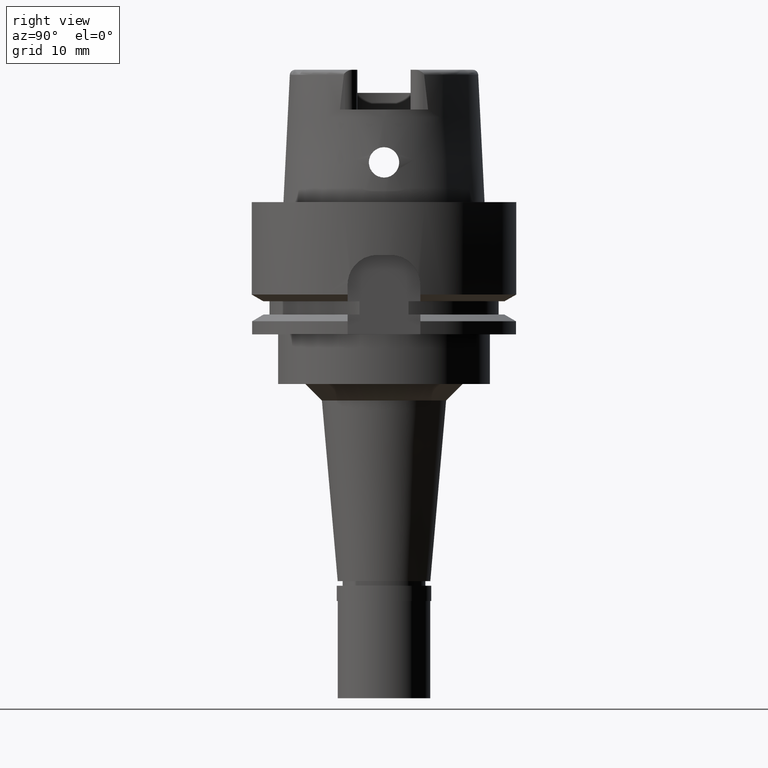
[diagram: clean part render]
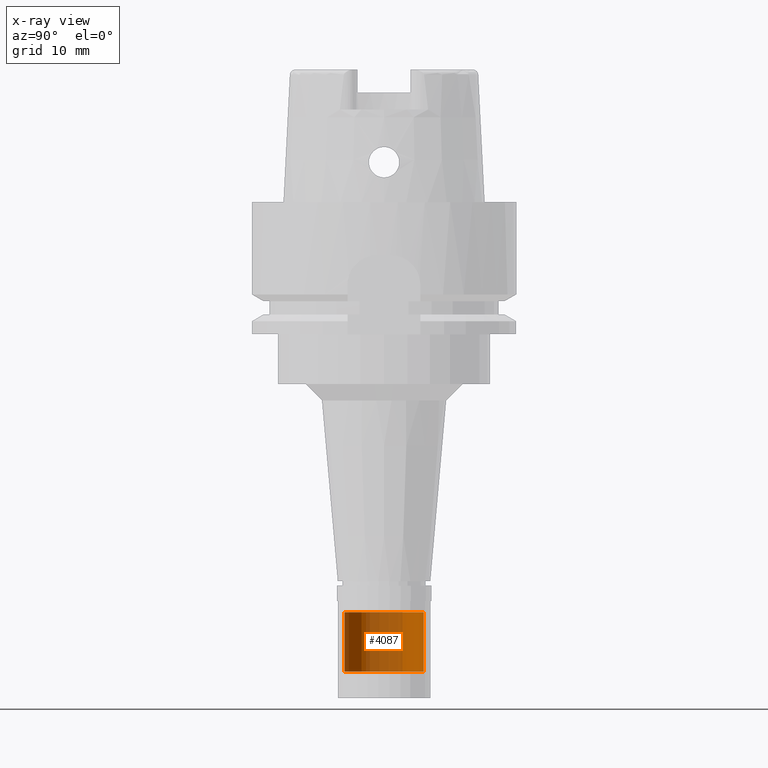
[diagram: x-ray — body ghosted, one internal face saturated and labeled with its STEP entity id]
A machine part, right view, then the same camera in x-ray: the body is ghosted and one INTERNAL B-rep face — a face not visible from any outside direction — is saturated and labeled: STEP entity #4087.
In plain terms, the highlighted cylindrical surface (partial cylindrical patch) has radius 6 mm, axis along (0, 0, -1).
Its self-contained STEP definition (entity closure, byte-faithful):
#144 = VERTEX_POINT ( 'NONE', #861 ) ;
#405 = VECTOR ( 'NONE', #3020, 1000.000000000000000 ) ;
#451 = AXIS2_PLACEMENT_3D ( 'NONE', #2829, #2006, #4465 ) ;
#551 = EDGE_LOOP ( 'NONE', ( #4214, #665, #3051, #1697 ) ) ;
#665 = ORIENTED_EDGE ( 'NONE', *, *, #2742, .F. ) ;
#777 = CARTESIAN_POINT ( 'NONE',  ( 0.0000000000000000000, 1.525297588337999954E-14, -71.00000000000000000 ) ) ;
#796 = CIRCLE ( 'NONE', #3785, 6.000000000000000000 ) ;
#861 = CARTESIAN_POINT ( 'NONE',  ( 0.0000000000000000000, -6.000000000000000000, -62.00000000000000000 ) ) ;
#1068 = CARTESIAN_POINT ( 'NONE',  ( 0.0000000000000000000, -6.000000000000000000, -71.00000000000000000 ) ) ;
#1246 = EDGE_CURVE ( 'NONE', #1547, #4732, #796, .T. ) ;
#1547 = VERTEX_POINT ( 'NONE', #4673 ) ;
#1697 = ORIENTED_EDGE ( 'NONE', *, *, #2247, .T. ) ;
#1872 = CARTESIAN_POINT ( 'NONE',  ( 0.0000000000000000000, 6.000000000000000000, -62.00000000000000000 ) ) ;
#1935 = VECTOR ( 'NONE', #3942, 1000.000000000000000 ) ;
#2006 = DIRECTION ( 'NONE',  ( 0.0000000000000000000, 0.0000000000000000000, -1.000000000000000000 ) ) ;
#2090 = VERTEX_POINT ( 'NONE', #3670 ) ;
#2209 = LINE ( 'NONE', #2671, #405 ) ;
#2247 = EDGE_CURVE ( 'NONE', #2090, #1547, #2651, .T. ) ;
#2440 = EDGE_CURVE ( 'NONE', #144, #2090, #4161, .T. ) ;
#2651 = LINE ( 'NONE', #1872, #1935 ) ;
#2671 = CARTESIAN_POINT ( 'NONE',  ( 0.0000000000000000000, -6.000000000000000000, -62.00000000000000000 ) ) ;
#2742 = EDGE_CURVE ( 'NONE', #144, #4732, #2209, .T. ) ;
#2780 = DIRECTION ( 'NONE',  ( 0.0000000000000000000, 0.0000000000000000000, 1.000000000000000000 ) ) ;
#2827 = DIRECTION ( 'NONE',  ( 0.0000000000000000000, -1.000000000000000000, 0.0000000000000000000 ) ) ;
#2829 = CARTESIAN_POINT ( 'NONE',  ( 0.0000000000000000000, 1.525297588337999954E-14, 24.54999999999999716 ) ) ;
#2864 = AXIS2_PLACEMENT_3D ( 'NONE', #5196, #4887, #2827 ) ;
#3020 = DIRECTION ( 'NONE',  ( 0.0000000000000000000, 0.0000000000000000000, -1.000000000000000000 ) ) ;
#3051 = ORIENTED_EDGE ( 'NONE', *, *, #2440, .T. ) ;
#3167 = FACE_OUTER_BOUND ( 'NONE', #551, .T. ) ;
#3670 = CARTESIAN_POINT ( 'NONE',  ( 0.0000000000000000000, 6.000000000000000000, -62.00000000000000000 ) ) ;
#3785 = AXIS2_PLACEMENT_3D ( 'NONE', #777, #2780, #4393 ) ;
#3942 = DIRECTION ( 'NONE',  ( 0.0000000000000000000, 0.0000000000000000000, -1.000000000000000000 ) ) ;
#4087 = ADVANCED_FACE ( 'NONE', ( #3167 ), #5219, .T. ) ;
#4161 = CIRCLE ( 'NONE', #2864, 6.000000000000000000 ) ;
#4214 = ORIENTED_EDGE ( 'NONE', *, *, #1246, .T. ) ;
#4393 = DIRECTION ( 'NONE',  ( 0.0000000000000000000, 1.000000000000000000, 0.0000000000000000000 ) ) ;
#4465 = DIRECTION ( 'NONE',  ( 0.0000000000000000000, -1.000000000000000000, 0.0000000000000000000 ) ) ;
#4673 = CARTESIAN_POINT ( 'NONE',  ( 0.0000000000000000000, 6.000000000000000000, -71.00000000000000000 ) ) ;
#4732 = VERTEX_POINT ( 'NONE', #1068 ) ;
#4887 = DIRECTION ( 'NONE',  ( 0.0000000000000000000, 0.0000000000000000000, -1.000000000000000000 ) ) ;
#5196 = CARTESIAN_POINT ( 'NONE',  ( 0.0000000000000000000, 1.525297588337999954E-14, -62.00000000000000000 ) ) ;
#5219 = CYLINDRICAL_SURFACE ( 'NONE', #451, 6.000000000000000000 ) ;